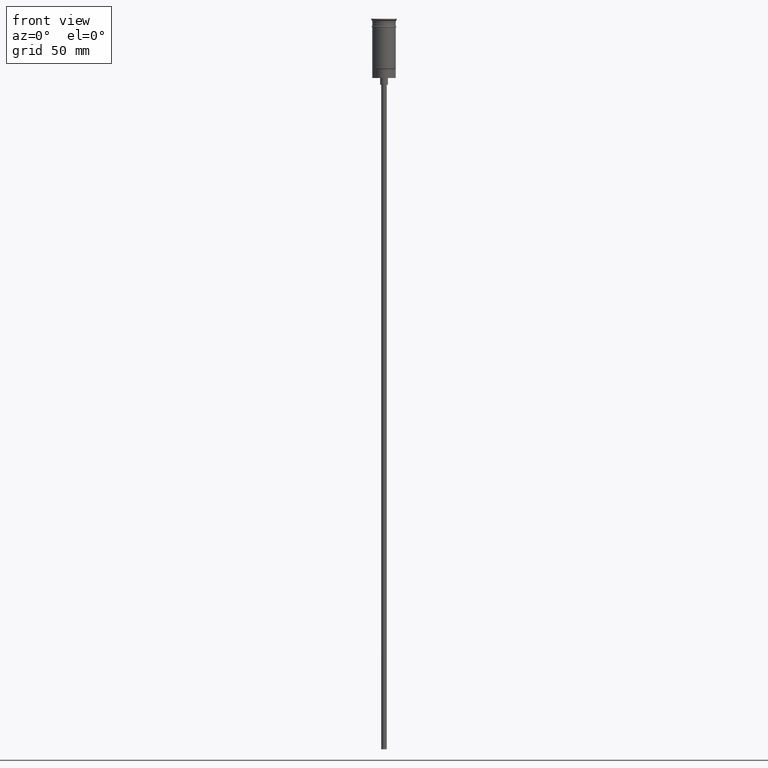
[diagram: clean part render]
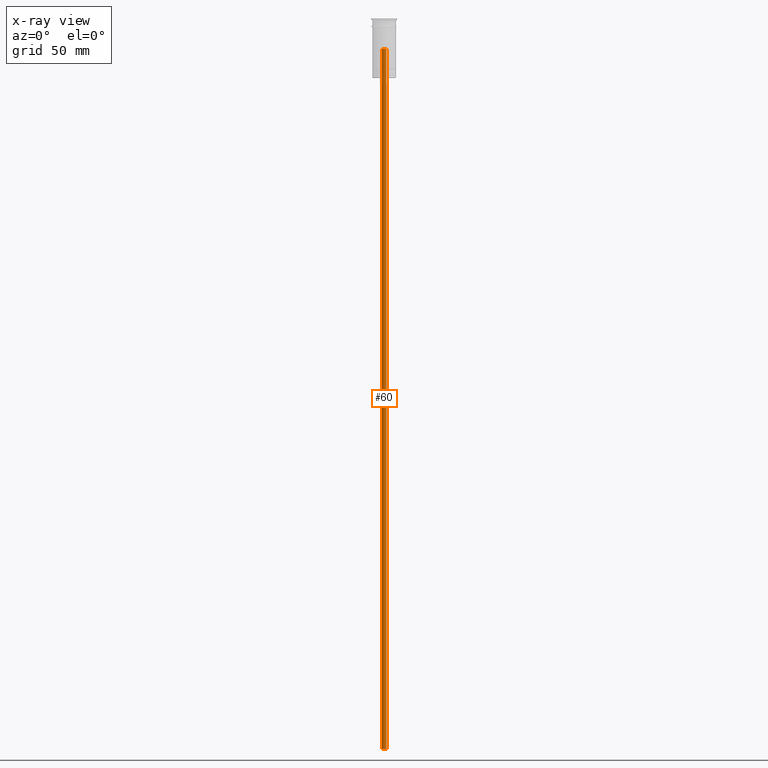
[diagram: x-ray — body ghosted, one internal face saturated and labeled with its STEP entity id]
A machine part, front view, then the same camera in x-ray: the body is ghosted and one INTERNAL B-rep face — a face not visible from any outside direction — is saturated and labeled: STEP entity #60.
In plain terms, the highlighted cylindrical surface (edge-blend (fillet) strip) has radius 1 mm, axis along (-0, -0, -1).
Its self-contained STEP definition (entity closure, byte-faithful):
#11 = VECTOR ( 'NONE', #33, 1000.000000000000000 ) ;
#22 = AXIS2_PLACEMENT_3D ( 'NONE', #1194, #1177, #420 ) ;
#33 = DIRECTION ( 'NONE',  ( -0.000000000000000000, -0.000000000000000000, -1.000000000000000000 ) ) ;
#60 = ADVANCED_FACE ( 'NONE', ( #318 ), #549, .F. ) ;
#106 = ORIENTED_EDGE ( 'NONE', *, *, #251, .F. ) ;
#114 = DIRECTION ( 'NONE',  ( -1.000000000000000000, 0.000000000000000000, 0.000000000000000000 ) ) ;
#208 = ORIENTED_EDGE ( 'NONE', *, *, #955, .T. ) ;
#225 = CARTESIAN_POINT ( 'NONE',  ( -1.000000000000000000, 0.000000000000000000, -10.67157287525383147 ) ) ;
#251 = EDGE_CURVE ( 'NONE', #749, #952, #579, .T. ) ;
#318 = FACE_OUTER_BOUND ( 'NONE', #471, .T. ) ;
#364 = CARTESIAN_POINT ( 'NONE',  ( 1.000000000000000000, 1.224646799147353207E-16, -13.49999999999999822 ) ) ;
#420 = DIRECTION ( 'NONE',  ( -1.000000000000000000, 0.000000000000000000, 0.000000000000000000 ) ) ;
#429 = ORIENTED_EDGE ( 'NONE', *, *, #1458, .F. ) ;
#471 = EDGE_LOOP ( 'NONE', ( #429, #208, #1104, #106 ) ) ;
#549 = CYLINDRICAL_SURFACE ( 'NONE', #22, 1.000000000000000000 ) ;
#579 = LINE ( 'NONE', #225, #1490 ) ;
#749 = VERTEX_POINT ( 'NONE', #873 ) ;
#806 = LINE ( 'NONE', #1299, #11 ) ;
#861 = DIRECTION ( 'NONE',  ( 0.000000000000000000, 0.000000000000000000, -1.000000000000000000 ) ) ;
#873 = CARTESIAN_POINT ( 'NONE',  ( -1.000000000000000000, 0.000000000000000000, -13.49999999999999822 ) ) ;
#924 = CIRCLE ( 'NONE', #1489, 1.000000000000000000 ) ;
#952 = VERTEX_POINT ( 'NONE', #1395 ) ;
#955 = EDGE_CURVE ( 'NONE', #1197, #1169, #806, .T. ) ;
#981 = DIRECTION ( 'NONE',  ( -0.000000000000000000, -0.000000000000000000, -1.000000000000000000 ) ) ;
#1104 = ORIENTED_EDGE ( 'NONE', *, *, #1195, .T. ) ;
#1108 = CARTESIAN_POINT ( 'NONE',  ( 1.000000000000000000, 1.224646799147353207E-16, -326.5000000000000000 ) ) ;
#1169 = VERTEX_POINT ( 'NONE', #1108 ) ;
#1177 = DIRECTION ( 'NONE',  ( -0.000000000000000000, -0.000000000000000000, -1.000000000000000000 ) ) ;
#1194 = CARTESIAN_POINT ( 'NONE',  ( 0.000000000000000000, 0.000000000000000000, -10.67157287525383147 ) ) ;
#1195 = EDGE_CURVE ( 'NONE', #1169, #952, #1307, .T. ) ;
#1197 = VERTEX_POINT ( 'NONE', #364 ) ;
#1299 = CARTESIAN_POINT ( 'NONE',  ( 1.000000000000000000, 1.224646799147353207E-16, -10.67157287525383147 ) ) ;
#1307 = CIRCLE ( 'NONE', #1566, 1.000000000000000000 ) ;
#1395 = CARTESIAN_POINT ( 'NONE',  ( -1.000000000000000000, 0.000000000000000000, -326.5000000000000000 ) ) ;
#1458 = EDGE_CURVE ( 'NONE', #1197, #749, #924, .T. ) ;
#1459 = DIRECTION ( 'NONE',  ( 0.000000000000000000, -1.000000000000000000, 0.000000000000000000 ) ) ;
#1489 = AXIS2_PLACEMENT_3D ( 'NONE', #1591, #1600, #1459 ) ;
#1490 = VECTOR ( 'NONE', #981, 1000.000000000000000 ) ;
#1493 = CARTESIAN_POINT ( 'NONE',  ( 0.000000000000000000, 0.000000000000000000, -326.5000000000000000 ) ) ;
#1566 = AXIS2_PLACEMENT_3D ( 'NONE', #1493, #861, #114 ) ;
#1591 = CARTESIAN_POINT ( 'NONE',  ( 0.000000000000000000, 0.000000000000000000, -13.49999999999999822 ) ) ;
#1600 = DIRECTION ( 'NONE',  ( -0.000000000000000000, -3.730588120380232914E-16, -1.000000000000000000 ) ) ;